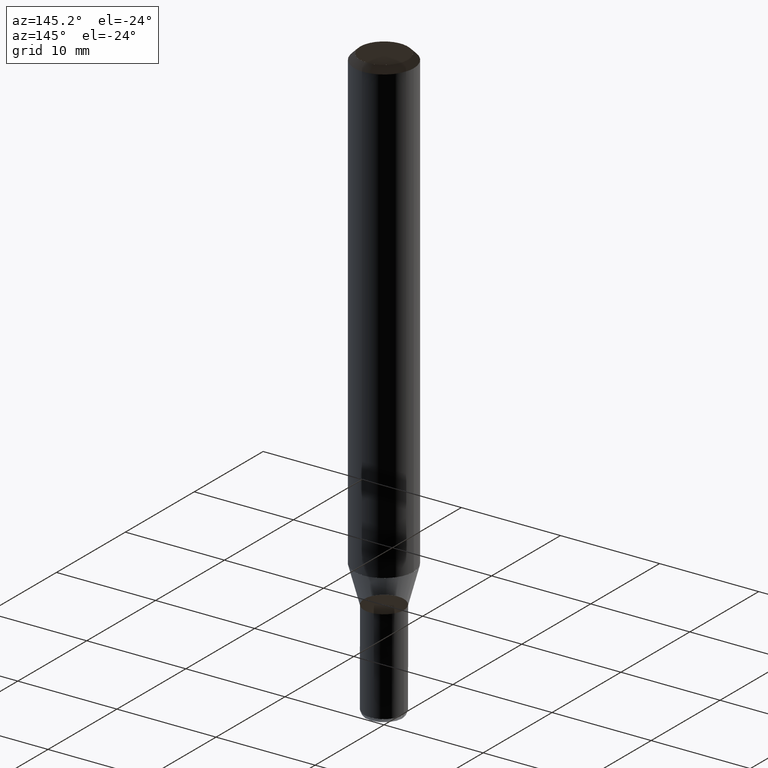
[diagram: clean part render]
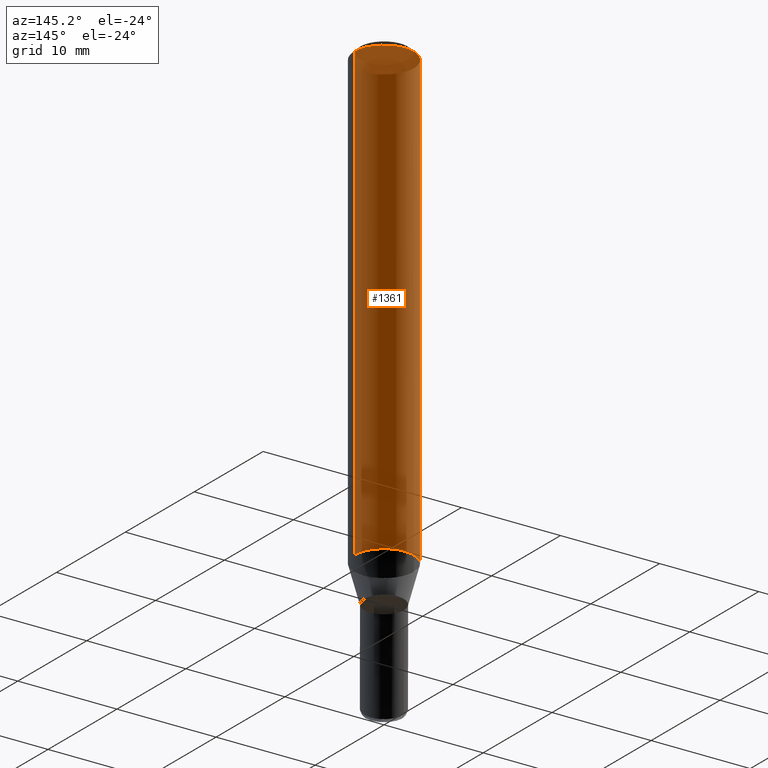
[diagram: same view with one face highlighted and labeled with its STEP entity id]
A machine part, auxiliary view. The second image highlights one B-rep face of the part: STEP entity #1361.
In plain terms, the highlighted face is a freeform B-spline surface patch.
Its self-contained STEP definition (entity closure, byte-faithful):
#1124=CARTESIAN_POINT('',(3.0,0.0,0.0));
#1125=CARTESIAN_POINT('',(3.0,3.0,0.0));
#1126=CARTESIAN_POINT('',(0.0,3.0,0.0));
#1127=CARTESIAN_POINT('',(-3.0,3.0,0.0));
#1128=CARTESIAN_POINT('',(-3.0,0.0,0.0));
#1129=CARTESIAN_POINT('',(3.0,0.0,45.667949192431));
#1130=CARTESIAN_POINT('',(3.0,3.0,45.667949192431));
#1131=CARTESIAN_POINT('',(0.0,3.0,45.667949192431));
#1132=CARTESIAN_POINT('',(-3.0,3.0,45.667949192431));
#1133=CARTESIAN_POINT('',(-3.0,0.0,45.667949192431));
#1342=(
BOUNDED_SURFACE()
B_SPLINE_SURFACE(1,2,(
(#1124,#1125,#1126,#1127,#1128),
(#1129,#1130,#1131,#1132,#1133)
), .UNSPECIFIED.,.F.,.F.,.F.)
B_SPLINE_SURFACE_WITH_KNOTS((2,2),(3,2,3),(
0.0,1.0),(
0.0,0.5,1.0), .UNSPECIFIED.)
GEOMETRIC_REPRESENTATION_ITEM()
RATIONAL_B_SPLINE_SURFACE(((1.0,0.707106781187,1.0,0.707106781187,1.0),
(1.0,0.707106781187,1.0,0.707106781187,1.0)
))
REPRESENTATION_ITEM('')
SURFACE()
);
#1343=(
BOUNDED_CURVE()
B_SPLINE_CURVE(2,(#1129,#1130,#1131,#1132,#1133),.UNSPECIFIED.,.F.,.F.)
B_SPLINE_CURVE_WITH_KNOTS((3,2,3),
(0.0,0.5,1.0),.UNSPECIFIED.)
CURVE()
GEOMETRIC_REPRESENTATION_ITEM()
RATIONAL_B_SPLINE_CURVE((1.0,0.707106781187,1.0,0.707106781187,1.0))
REPRESENTATION_ITEM('')
);
#1344=(
BOUNDED_CURVE()
B_SPLINE_CURVE(1,(#1133,#1128),.UNSPECIFIED.,.F.,.F.)
B_SPLINE_CURVE_WITH_KNOTS((2,2),
(0.0,1.0),.UNSPECIFIED.)
CURVE()
GEOMETRIC_REPRESENTATION_ITEM()
RATIONAL_B_SPLINE_CURVE((1.0,1.0))
REPRESENTATION_ITEM('')
);
#1345=(
BOUNDED_CURVE()
B_SPLINE_CURVE(2,(#1128,#1127,#1126,#1125,#1124),.UNSPECIFIED.,.F.,.F.)
B_SPLINE_CURVE_WITH_KNOTS((3,2,3),
(0.0,0.5,1.0),.UNSPECIFIED.)
CURVE()
GEOMETRIC_REPRESENTATION_ITEM()
RATIONAL_B_SPLINE_CURVE((1.0,0.707106781187,1.0,0.707106781187,1.0))
REPRESENTATION_ITEM('')
);
#1346=(
BOUNDED_CURVE()
B_SPLINE_CURVE(1,(#1124,#1129),.UNSPECIFIED.,.F.,.F.)
B_SPLINE_CURVE_WITH_KNOTS((2,2),
(0.0,1.0),.UNSPECIFIED.)
CURVE()
GEOMETRIC_REPRESENTATION_ITEM()
RATIONAL_B_SPLINE_CURVE((1.0,1.0))
REPRESENTATION_ITEM('')
);
#1347=VERTEX_POINT('',#1124);
#1348=VERTEX_POINT('',#1128);
#1349=VERTEX_POINT('',#1129);
#1350=VERTEX_POINT('',#1133);
#1351=EDGE_CURVE('',#1349,#1350,#1343,.T.);
#1352=EDGE_CURVE('',#1350,#1348,#1344,.T.);
#1353=EDGE_CURVE('',#1348,#1347,#1345,.T.);
#1354=EDGE_CURVE('',#1347,#1349,#1346,.T.);
#1355=ORIENTED_EDGE('',*,*,#1351,.T.);
#1356=ORIENTED_EDGE('',*,*,#1352,.T.);
#1357=ORIENTED_EDGE('',*,*,#1353,.T.);
#1358=ORIENTED_EDGE('',*,*,#1354,.T.);
#1359=EDGE_LOOP('',(#1355,#1356,#1357,#1358));
#1360=FACE_OUTER_BOUND('',#1359,.T.);
#1361=ADVANCED_FACE('',(#1360),#1342,.T.);